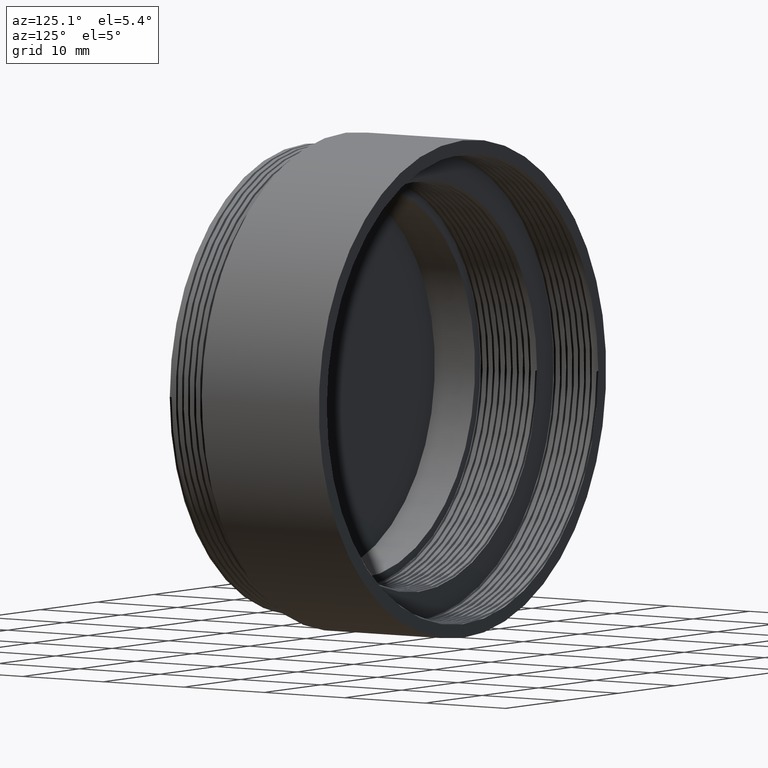
[diagram: clean part render]
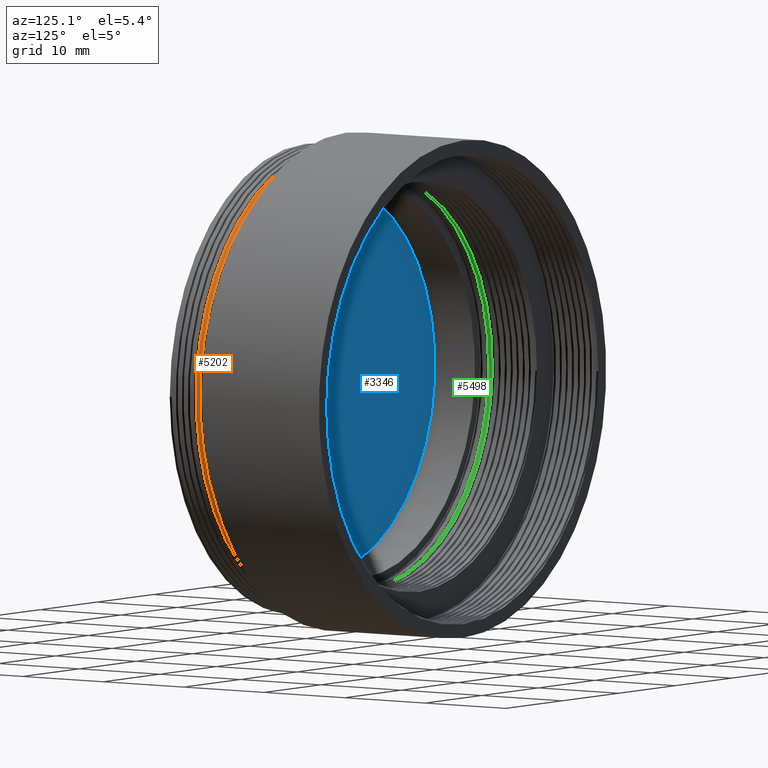
[diagram: same view with three faces highlighted in distinct colors, each labeled with its STEP entity id]
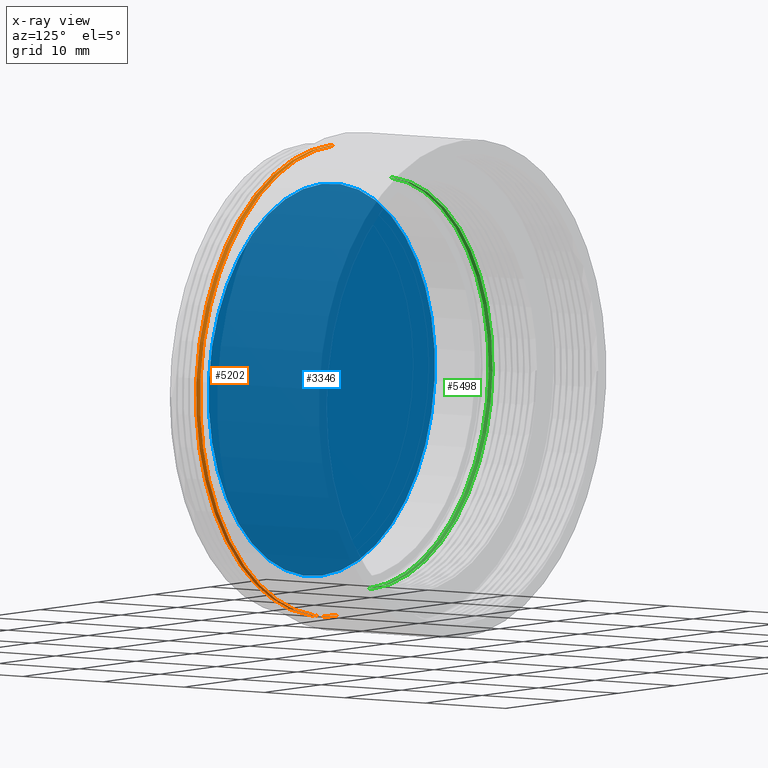
[diagram: x-ray of the same camera — body ghosted, the three highlighted faces saturated]
A machine part, auxiliary view with three faces highlighted in distinct colors.
The next image is the same camera in x-ray (body ghosted, the three faces saturated) — at least one of them is partly hidden behind the body in this view.
Their STEP definitions:

[orange] entity #5202 — the highlighted cylindrical surface (partial cylindrical patch) has radius 24 mm, axis along (-0, -1, -0).
#114 = CARTESIAN_POINT ( 'NONE',  ( 24.00000000000000000, 3.750000000000000444, 0.000000000000000000 ) ) ;
#208 = EDGE_CURVE ( 'NONE', #4728, #5846, #5348, .T. ) ;
#298 =( BOUNDED_CURVE ( )  B_SPLINE_CURVE ( 2, ( #1485, #3918, #5462, #2502, #114, #2055, #5407, #4009, #5492 ),
 .UNSPECIFIED., .F., .F. ) 
 B_SPLINE_CURVE_WITH_KNOTS ( ( 3, 2, 2, 2, 3 ),
 ( 0.6785714285714284921, 0.6964285714285712858, 0.7142857142857141906, 0.7321428571428570953, 0.7500000000000000000 ),
 .UNSPECIFIED. ) 
 CURVE ( )  GEOMETRIC_REPRESENTATION_ITEM ( )  RATIONAL_B_SPLINE_CURVE ( ( 1.000000000000000444, 0.9238795325112862944, 1.000000000000000000, 0.9238795325112867385, 1.000000000000000000, 0.9238795325112867385, 1.000000000000000000, 0.9238795325112867385, 1.000000000000000000 ) ) 
 REPRESENTATION_ITEM ( '' )  );
#303 = CARTESIAN_POINT ( 'NONE',  ( 2.939152317953647894E-15, 0.000000000000000000, 24.00000000000000000 ) ) ;
#346 = DIRECTION ( 'NONE',  ( 0.000000000000000000, 0.000000000000000000, -1.000000000000000000 ) ) ;
#637 =( BOUNDED_CURVE ( )  B_SPLINE_CURVE ( 2, ( #1951, #972, #2914, #2972, #3965, #2428, #1472, #5805, #4943 ),
 .UNSPECIFIED., .F., .F. ) 
 B_SPLINE_CURVE_WITH_KNOTS ( ( 3, 2, 2, 2, 3 ),
 ( 0.5357142857142856984, 0.5535714285714286031, 0.5714285714285713969, 0.5892857142857143016, 0.6071428571428570953 ),
 .UNSPECIFIED. ) 
 CURVE ( )  GEOMETRIC_REPRESENTATION_ITEM ( )  RATIONAL_B_SPLINE_CURVE ( ( 1.000000000000000000, 0.9238795325112867385, 1.000000000000000000, 0.9238795325112867385, 1.000000000000000000, 0.9238795325112867385, 1.000000000000000000, 0.9238795325112867385, 1.000000000000000000 ) ) 
 REPRESENTATION_ITEM ( '' )  );
#762 = CARTESIAN_POINT ( 'NONE',  ( 0.000000000000000000, 0.000000000000000000, 0.000000000000000000 ) ) ;
#972 = CARTESIAN_POINT ( 'NONE',  ( 9.941125496954287044, 3.137187499132848334, 23.99999999999999645 ) ) ;
#1472 = CARTESIAN_POINT ( 'NONE',  ( 16.97056274847714263, 3.371562499132848778, -16.97056274847714263 ) ) ;
#1485 = CARTESIAN_POINT ( 'NONE',  ( -4.408728476930470856E-15, 3.562500000000000444, 24.00000000000000000 ) ) ;
#1849 = LINE ( 'NONE', #5767, #1876 ) ;
#1876 = VECTOR ( 'NONE', #3926, 1000.000000000000000 ) ;
#1951 = CARTESIAN_POINT ( 'NONE',  ( -4.408728476930470856E-15, 3.090312499132848334, 24.00000000000000000 ) ) ;
#2055 = CARTESIAN_POINT ( 'NONE',  ( 23.99999999999999645, 3.796875000000000444, -9.941125496954285268 ) ) ;
#2130 = CARTESIAN_POINT ( 'NONE',  ( 1.469576158976823947E-15, 3.937500000000000000, -24.00000000000000000 ) ) ;
#2366 = ORIENTED_EDGE ( 'NONE', *, *, #4303, .F. ) ;
#2428 = CARTESIAN_POINT ( 'NONE',  ( 23.99999999999999645, 3.324687499132848334, -9.941125496954285268 ) ) ;
#2502 = CARTESIAN_POINT ( 'NONE',  ( 23.99999999999999289, 3.703125000000000888, 9.941125496954301255 ) ) ;
#2867 = DIRECTION ( 'NONE',  ( -0.000000000000000000, -1.000000000000000000, -0.000000000000000000 ) ) ;
#2900 = ORIENTED_EDGE ( 'NONE', *, *, #208, .T. ) ;
#2914 = CARTESIAN_POINT ( 'NONE',  ( 16.97056274847713553, 3.184062499132848334, 16.97056274847714619 ) ) ;
#2919 = ORIENTED_EDGE ( 'NONE', *, *, #3813, .T. ) ;
#2966 = CARTESIAN_POINT ( 'NONE',  ( -4.408728476930470856E-15, 3.562500000000000444, 24.00000000000000000 ) ) ;
#2972 = CARTESIAN_POINT ( 'NONE',  ( 23.99999999999999289, 3.230937499132848334, 9.941125496954301255 ) ) ;
#3171 = CARTESIAN_POINT ( 'NONE',  ( -4.408728476930470856E-15, 3.090312499132848334, 24.00000000000000000 ) ) ;
#3480 = VERTEX_POINT ( 'NONE', #2130 ) ;
#3561 = CARTESIAN_POINT ( 'NONE',  ( 1.469576158976823947E-15, 3.465312499132848778, -24.00000000000000000 ) ) ;
#3680 = EDGE_LOOP ( 'NONE', ( #2366, #2900, #2919, #4852 ) ) ;
#3702 = DIRECTION ( 'NONE',  ( -0.000000000000000000, -1.000000000000000000, -0.000000000000000000 ) ) ;
#3813 = EDGE_CURVE ( 'NONE', #5846, #5643, #637, .T. ) ;
#3918 = CARTESIAN_POINT ( 'NONE',  ( 9.941125496954239082, 3.609375000000000000, 24.00000000000004974 ) ) ;
#3920 = AXIS2_PLACEMENT_3D ( 'NONE', #762, #3702, #346 ) ;
#3926 = DIRECTION ( 'NONE',  ( -0.000000000000000000, -1.000000000000000000, -0.000000000000000000 ) ) ;
#3965 = CARTESIAN_POINT ( 'NONE',  ( 24.00000000000000000, 3.277812499132848334, 0.000000000000000000 ) ) ;
#4009 = CARTESIAN_POINT ( 'NONE',  ( 9.941125496954285268, 3.890625000000000444, -23.99999999999999645 ) ) ;
#4217 = CYLINDRICAL_SURFACE ( 'NONE', #3920, 24.00000000000000000 ) ;
#4303 = EDGE_CURVE ( 'NONE', #4728, #3480, #298, .T. ) ;
#4728 = VERTEX_POINT ( 'NONE', #2966 ) ;
#4852 = ORIENTED_EDGE ( 'NONE', *, *, #5319, .F. ) ;
#4943 = CARTESIAN_POINT ( 'NONE',  ( 1.469576158976823947E-15, 3.465312499132848778, -24.00000000000000000 ) ) ;
#5202 = ADVANCED_FACE ( 'NONE', ( #6266 ), #4217, .T. ) ;
#5319 = EDGE_CURVE ( 'NONE', #3480, #5643, #1849, .T. ) ;
#5348 = LINE ( 'NONE', #303, #6086 ) ;
#5407 = CARTESIAN_POINT ( 'NONE',  ( 16.97056274847714263, 3.843750000000000444, -16.97056274847714263 ) ) ;
#5462 = CARTESIAN_POINT ( 'NONE',  ( 16.97056274847713553, 3.656250000000000444, 16.97056274847714619 ) ) ;
#5492 = CARTESIAN_POINT ( 'NONE',  ( 1.469576158976823947E-15, 3.937500000000000000, -24.00000000000000000 ) ) ;
#5643 = VERTEX_POINT ( 'NONE', #3561 ) ;
#5767 = CARTESIAN_POINT ( 'NONE',  ( 0.000000000000000000, 0.000000000000000000, -24.00000000000000000 ) ) ;
#5805 = CARTESIAN_POINT ( 'NONE',  ( 9.941125496954285268, 3.418437499132848778, -23.99999999999999645 ) ) ;
#5846 = VERTEX_POINT ( 'NONE', #3171 ) ;
#6086 = VECTOR ( 'NONE', #2867, 1000.000000000000000 ) ;
#6266 = FACE_OUTER_BOUND ( 'NONE', #3680, .T. ) ;

[blue] entity #3346 — the highlighted planar face has unit normal (0, 1, 0).
#93 = AXIS2_PLACEMENT_3D ( 'NONE', #4154, #5484, #4549 ) ;
#125 = CARTESIAN_POINT ( 'NONE',  ( 2.449293598294706513E-15, 2.010000000000000231, 20.00000000000000000 ) ) ;
#544 = EDGE_LOOP ( 'NONE', ( #6216, #1213 ) ) ;
#623 = CARTESIAN_POINT ( 'NONE',  ( 0.000000000000000000, 2.010000000000000231, 0.000000000000000000 ) ) ;
#653 = EDGE_CURVE ( 'NONE', #902, #3876, #3050, .T. ) ;
#902 = VERTEX_POINT ( 'NONE', #1690 ) ;
#989 = CIRCLE ( 'NONE', #4247, 20.00000000000000000 ) ;
#1213 = ORIENTED_EDGE ( 'NONE', *, *, #2714, .T. ) ;
#1690 = CARTESIAN_POINT ( 'NONE',  ( 0.000000000000000000, 2.010000000000000231, -20.00000000000000000 ) ) ;
#1927 = PLANE ( 'NONE',  #93 ) ;
#2643 = DIRECTION ( 'NONE',  ( 0.000000000000000000, 0.000000000000000000, 1.000000000000000000 ) ) ;
#2714 = EDGE_CURVE ( 'NONE', #3876, #902, #989, .T. ) ;
#2985 = DIRECTION ( 'NONE',  ( 0.000000000000000000, 0.000000000000000000, 1.000000000000000000 ) ) ;
#3050 = CIRCLE ( 'NONE', #3565, 20.00000000000000000 ) ;
#3346 = ADVANCED_FACE ( 'NONE', ( #6314 ), #1927, .T. ) ;
#3439 = DIRECTION ( 'NONE',  ( 0.000000000000000000, 1.000000000000000000, 0.000000000000000000 ) ) ;
#3565 = AXIS2_PLACEMENT_3D ( 'NONE', #6076, #4612, #2643 ) ;
#3876 = VERTEX_POINT ( 'NONE', #125 ) ;
#4154 = CARTESIAN_POINT ( 'NONE',  ( 0.000000000000000000, 2.010000000000000231, 0.000000000000000000 ) ) ;
#4247 = AXIS2_PLACEMENT_3D ( 'NONE', #623, #3439, #2985 ) ;
#4549 = DIRECTION ( 'NONE',  ( 0.000000000000000000, -0.000000000000000000, 1.000000000000000000 ) ) ;
#4612 = DIRECTION ( 'NONE',  ( 0.000000000000000000, 1.000000000000000000, 0.000000000000000000 ) ) ;
#5484 = DIRECTION ( 'NONE',  ( 0.000000000000000000, 1.000000000000000000, 0.000000000000000000 ) ) ;
#6076 = CARTESIAN_POINT ( 'NONE',  ( 0.000000000000000000, 2.010000000000000231, 0.000000000000000000 ) ) ;
#6216 = ORIENTED_EDGE ( 'NONE', *, *, #653, .T. ) ;
#6314 = FACE_OUTER_BOUND ( 'NONE', #544, .T. ) ;

[green] entity #5498 — the highlighted cylindrical surface (partial cylindrical patch) has radius 21 mm, axis along (-0, -1, -0).
#43 = VERTEX_POINT ( 'NONE', #5169 ) ;
#65 = CARTESIAN_POINT ( 'NONE',  ( -21.00000000000000000, 8.472187500867152110, 0.000000000000000000 ) ) ;
#86 = CARTESIAN_POINT ( 'NONE',  ( -14.84924240491749892, 7.906250000000000000, -14.84924240491749892 ) ) ;
#283 = ORIENTED_EDGE ( 'NONE', *, *, #1077, .F. ) ;
#315 = LINE ( 'NONE', #4742, #812 ) ;
#517 = CARTESIAN_POINT ( 'NONE',  ( -14.84924240491749536, 8.565937500867152110, 14.84924240491750247 ) ) ;
#566 = CARTESIAN_POINT ( 'NONE',  ( -20.99999999999999645, 8.046875000000000000, 8.698484809835010267 ) ) ;
#574 = CARTESIAN_POINT ( 'NONE',  ( -8.698484809835058229, 8.331562500867150334, -20.99999999999994316 ) ) ;
#596 = CARTESIAN_POINT ( 'NONE',  ( 0.000000000000000000, 0.000000000000000000, 0.000000000000000000 ) ) ;
#626 = FACE_OUTER_BOUND ( 'NONE', #1751, .T. ) ;
#812 = VECTOR ( 'NONE', #4327, 1000.000000000000000 ) ;
#939 = ORIENTED_EDGE ( 'NONE', *, *, #2633, .T. ) ;
#998 = CARTESIAN_POINT ( 'NONE',  ( 3.857637417314162689E-15, 8.659687500867152110, 21.00000000000000000 ) ) ;
#1040 = EDGE_CURVE ( 'NONE', #3810, #43, #315, .T. ) ;
#1044 = CARTESIAN_POINT ( 'NONE',  ( 3.857637417314162689E-15, 8.187500000000000000, 21.00000000000000000 ) ) ;
#1077 = EDGE_CURVE ( 'NONE', #6230, #3810, #2173, .T. ) ;
#1465 = CARTESIAN_POINT ( 'NONE',  ( 3.857637417314162689E-15, 8.659687500867152110, 21.00000000000000000 ) ) ;
#1497 = CARTESIAN_POINT ( 'NONE',  ( -8.698484809834884146, 8.612812500867150334, 21.00000000000011724 ) ) ;
#1751 = EDGE_LOOP ( 'NONE', ( #283, #4945, #939, #5417 ) ) ;
#1904 = LINE ( 'NONE', #4275, #2618 ) ;
#1982 =( BOUNDED_CURVE ( )  B_SPLINE_CURVE ( 2, ( #1044, #5888, #4964, #566, #3101, #4472, #86, #5945, #5551 ),
 .UNSPECIFIED., .F., .F. ) 
 B_SPLINE_CURVE_WITH_KNOTS ( ( 3, 2, 2, 2, 3 ),
 ( 0.7750000000000000222, 0.7874999999999999778, 0.8000000000000000444, 0.8125000000000001110, 0.8250000000000000666 ),
 .UNSPECIFIED. ) 
 CURVE ( )  GEOMETRIC_REPRESENTATION_ITEM ( )  RATIONAL_B_SPLINE_CURVE ( ( 1.000000000000000000, 0.9238795325112867385, 1.000000000000000000, 0.9238795325112867385, 1.000000000000000000, 0.9238795325112867385, 1.000000000000000000, 0.9238795325112860723, 1.000000000000000666 ) ) 
 REPRESENTATION_ITEM ( '' )  );
#2031 = CARTESIAN_POINT ( 'NONE',  ( 3.857637417314162689E-15, 8.187500000000000000, 21.00000000000000000 ) ) ;
#2173 =( BOUNDED_CURVE ( )  B_SPLINE_CURVE ( 2, ( #998, #1497, #517, #5979, #65, #2970, #2426, #574, #3026 ),
 .UNSPECIFIED., .F., .F. ) 
 B_SPLINE_CURVE_WITH_KNOTS ( ( 3, 2, 2, 2, 3 ),
 ( 0.6749999999999998224, 0.6874999999999997780, 0.6999999999999998446, 0.7124999999999999112, 0.7249999999999998668 ),
 .UNSPECIFIED. ) 
 CURVE ( )  GEOMETRIC_REPRESENTATION_ITEM ( )  RATIONAL_B_SPLINE_CURVE ( ( 1.000000000000001332, 0.9238795325112854062, 1.000000000000000000, 0.9238795325112867385, 1.000000000000000000, 0.9238795325112867385, 1.000000000000000000, 0.9238795325112874046, 0.9999999999999993339 ) ) 
 REPRESENTATION_ITEM ( '' )  );
#2426 = CARTESIAN_POINT ( 'NONE',  ( -14.84924240491749892, 8.378437500867152110, -14.84924240491749892 ) ) ;
#2564 = CYLINDRICAL_SURFACE ( 'NONE', #4345, 21.00000000000000000 ) ;
#2618 = VECTOR ( 'NONE', #3858, 1000.000000000000000 ) ;
#2626 = DIRECTION ( 'NONE',  ( 0.000000000000000000, 0.000000000000000000, -1.000000000000000000 ) ) ;
#2633 = EDGE_CURVE ( 'NONE', #5674, #43, #1982, .T. ) ;
#2970 = CARTESIAN_POINT ( 'NONE',  ( -21.00000000000000355, 8.425312500867150334, -8.698484809834997833 ) ) ;
#3026 = CARTESIAN_POINT ( 'NONE',  ( -1.285879139104720831E-15, 8.284687500867152110, -21.00000000000000000 ) ) ;
#3101 = CARTESIAN_POINT ( 'NONE',  ( -21.00000000000000000, 8.000000000000000000, 0.000000000000000000 ) ) ;
#3531 = DIRECTION ( 'NONE',  ( -0.000000000000000000, -1.000000000000000000, -0.000000000000000000 ) ) ;
#3810 = VERTEX_POINT ( 'NONE', #4884 ) ;
#3858 = DIRECTION ( 'NONE',  ( -0.000000000000000000, -1.000000000000000000, -0.000000000000000000 ) ) ;
#4164 = EDGE_CURVE ( 'NONE', #6230, #5674, #1904, .T. ) ;
#4275 = CARTESIAN_POINT ( 'NONE',  ( 2.571758278209441661E-15, 0.000000000000000000, 21.00000000000000000 ) ) ;
#4327 = DIRECTION ( 'NONE',  ( -0.000000000000000000, -1.000000000000000000, -0.000000000000000000 ) ) ;
#4345 = AXIS2_PLACEMENT_3D ( 'NONE', #596, #3531, #2626 ) ;
#4472 = CARTESIAN_POINT ( 'NONE',  ( -21.00000000000000355, 7.953125000000000000, -8.698484809834997833 ) ) ;
#4742 = CARTESIAN_POINT ( 'NONE',  ( 0.000000000000000000, 0.000000000000000000, -21.00000000000000000 ) ) ;
#4884 = CARTESIAN_POINT ( 'NONE',  ( -1.285879139104720831E-15, 8.284687500867152110, -21.00000000000000000 ) ) ;
#4945 = ORIENTED_EDGE ( 'NONE', *, *, #4164, .T. ) ;
#4964 = CARTESIAN_POINT ( 'NONE',  ( -14.84924240491749536, 8.093750000000000000, 14.84924240491750247 ) ) ;
#5169 = CARTESIAN_POINT ( 'NONE',  ( -1.285879139104720831E-15, 7.812500000000000000, -21.00000000000000000 ) ) ;
#5417 = ORIENTED_EDGE ( 'NONE', *, *, #1040, .F. ) ;
#5498 = ADVANCED_FACE ( 'NONE', ( #626 ), #2564, .F. ) ;
#5551 = CARTESIAN_POINT ( 'NONE',  ( -1.285879139104720831E-15, 7.812500000000000000, -21.00000000000000000 ) ) ;
#5674 = VERTEX_POINT ( 'NONE', #2031 ) ;
#5888 = CARTESIAN_POINT ( 'NONE',  ( -8.698484809835001386, 8.140625000000000000, 20.99999999999999645 ) ) ;
#5945 = CARTESIAN_POINT ( 'NONE',  ( -8.698484809834937437, 7.859374999999999112, -21.00000000000006040 ) ) ;
#5979 = CARTESIAN_POINT ( 'NONE',  ( -20.99999999999999645, 8.519062500867150334, 8.698484809835010267 ) ) ;
#6230 = VERTEX_POINT ( 'NONE', #1465 ) ;